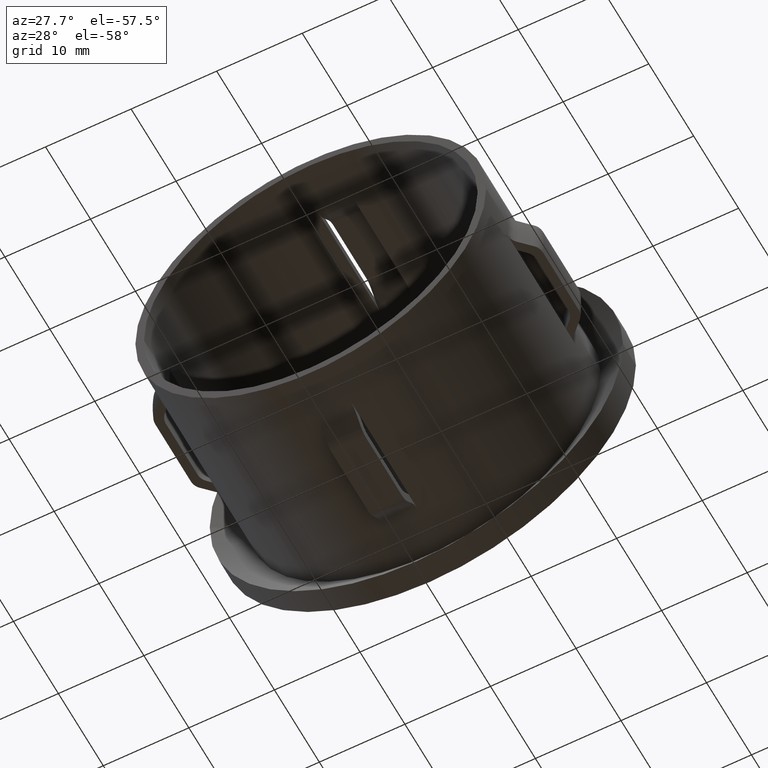
[diagram: clean part render]
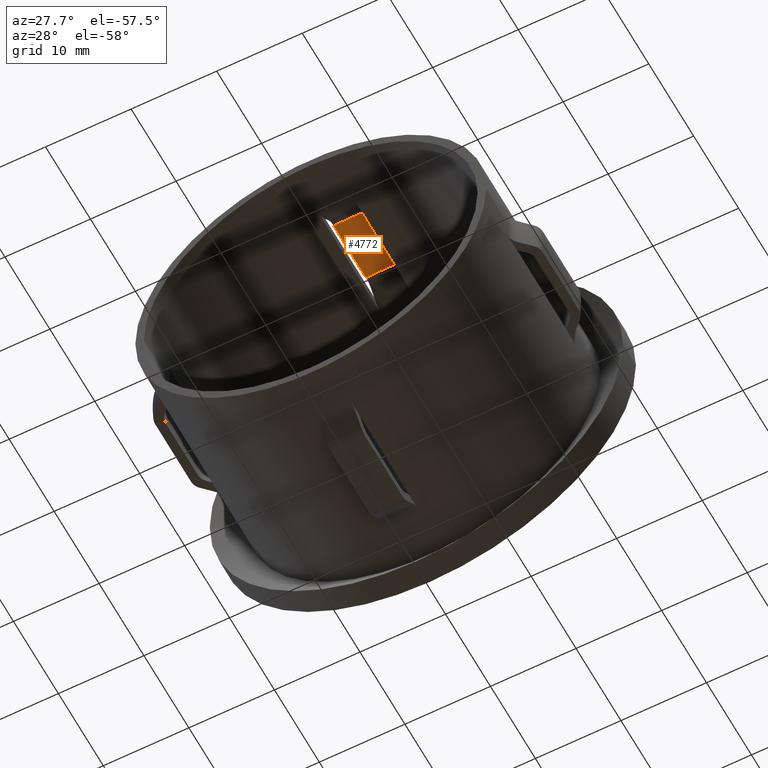
[diagram: same view with one face highlighted and labeled with its STEP entity id]
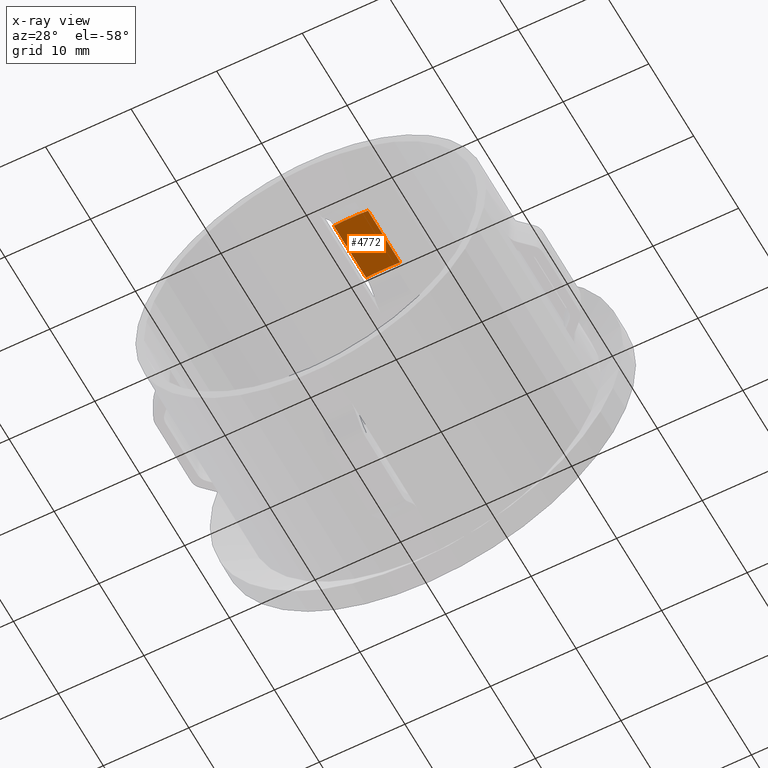
[diagram: x-ray of the same camera — body ghosted, the highlighted face saturated]
A machine part, auxiliary view. The second image highlights one B-rep face of the part: STEP entity #4772.
The next image is the same camera in x-ray: the body ghosted, the highlighted face saturated — about 0% of this face is hidden behind the body in this view.
In plain terms, the highlighted cylindrical surface (partial cylindrical patch) has radius 21.75 mm, axis along (-0, -1, -0).
Its self-contained STEP definition (entity closure, byte-faithful):
#142 = CIRCLE ( 'NONE', #8430, 21.75000000000003900 ) ;
#267 = ORIENTED_EDGE ( 'NONE', *, *, #9509, .F. ) ;
#585 = CARTESIAN_POINT ( 'NONE',  ( 0.0000000000000000000, 30.10000000000000100, 0.0000000000000000000 ) ) ;
#862 = EDGE_CURVE ( 'NONE', #7235, #2772, #4873, .T. ) ;
#2541 = DIRECTION ( 'NONE',  ( 1.000000000000000000, -2.871266442996086700E-015, 0.0000000000000000000 ) ) ;
#2772 = VERTEX_POINT ( 'NONE', #12387 ) ;
#2917 = AXIS2_PLACEMENT_3D ( 'NONE', #585, #8620, #7403 ) ;
#3700 = CARTESIAN_POINT ( 'NONE',  ( -1.999999999999997100, 30.10000000000000100, 21.65785077056359900 ) ) ;
#3901 = CYLINDRICAL_SURFACE ( 'NONE', #2917, 21.75000000000005000 ) ;
#4232 = VECTOR ( 'NONE', #11698, 1000.000000000000000 ) ;
#4594 = LINE ( 'NONE', #3700, #4232 ) ;
#4772 = ADVANCED_FACE ( 'NONE', ( #12861 ), #3901, .F. ) ;
#4873 = LINE ( 'NONE', #13905, #8682 ) ;
#6073 = DIRECTION ( 'NONE',  ( 1.000000000000000000, -2.871266442996089400E-015, 0.0000000000000000000 ) ) ;
#6348 = EDGE_CURVE ( 'NONE', #13495, #6826, #4594, .T. ) ;
#6358 = ORIENTED_EDGE ( 'NONE', *, *, #6348, .T. ) ;
#6816 = ORIENTED_EDGE ( 'NONE', *, *, #11965, .T. ) ;
#6826 = VERTEX_POINT ( 'NONE', #9689 ) ;
#7235 = VERTEX_POINT ( 'NONE', #11371 ) ;
#7317 = CIRCLE ( 'NONE', #8751, 21.75000000000006000 ) ;
#7403 = DIRECTION ( 'NONE',  ( 1.000000000000000000, -2.871266442996087900E-015, 0.0000000000000000000 ) ) ;
#8430 = AXIS2_PLACEMENT_3D ( 'NONE', #9213, #12622, #6073 ) ;
#8620 = DIRECTION ( 'NONE',  ( -2.904862207577519400E-015, -1.000000000000000000, -0.0000000000000000000 ) ) ;
#8682 = VECTOR ( 'NONE', #12795, 1000.000000000000000 ) ;
#8751 = AXIS2_PLACEMENT_3D ( 'NONE', #12793, #10597, #2541 ) ;
#8820 = ORIENTED_EDGE ( 'NONE', *, *, #862, .F. ) ;
#9213 = CARTESIAN_POINT ( 'NONE',  ( -4.068798155639680400E-014, 16.09314575050768800, 0.0000000000000000000 ) ) ;
#9509 = EDGE_CURVE ( 'NONE', #2772, #6826, #142, .T. ) ;
#9689 = CARTESIAN_POINT ( 'NONE',  ( -1.999999999999997300, 16.09314575050769500, 21.65785077056359100 ) ) ;
#9901 = CARTESIAN_POINT ( 'NONE',  ( -2.000000000000058600, 8.921572875253817300, 21.65785077056359900 ) ) ;
#10597 = DIRECTION ( 'NONE',  ( -2.904862207577519400E-015, -1.000000000000000000, -0.0000000000000000000 ) ) ;
#11371 = CARTESIAN_POINT ( 'NONE',  ( 1.999999999999941200, 8.921572875253817300, 21.65785077056359900 ) ) ;
#11698 = DIRECTION ( 'NONE',  ( 2.904862207577519400E-015, 1.000000000000000000, 0.0000000000000000000 ) ) ;
#11833 = EDGE_LOOP ( 'NONE', ( #6816, #6358, #267, #8820 ) ) ;
#11965 = EDGE_CURVE ( 'NONE', #7235, #13495, #7317, .T. ) ;
#12387 = CARTESIAN_POINT ( 'NONE',  ( 2.000000000000002200, 16.09314575050768100, 21.65785077056358400 ) ) ;
#12622 = DIRECTION ( 'NONE',  ( -2.904862207577519400E-015, -1.000000000000000000, -0.0000000000000000000 ) ) ;
#12793 = CARTESIAN_POINT ( 'NONE',  ( -6.152041257060965000E-014, 8.921572875253879400, 0.0000000000000000000 ) ) ;
#12795 = DIRECTION ( 'NONE',  ( 2.904862207577519400E-015, 1.000000000000000000, 0.0000000000000000000 ) ) ;
#12861 = FACE_OUTER_BOUND ( 'NONE', #11833, .T. ) ;
#13495 = VERTEX_POINT ( 'NONE', #9901 ) ;
#13905 = CARTESIAN_POINT ( 'NONE',  ( 2.000000000000002700, 30.10000000000000100, 21.65785077056359900 ) ) ;